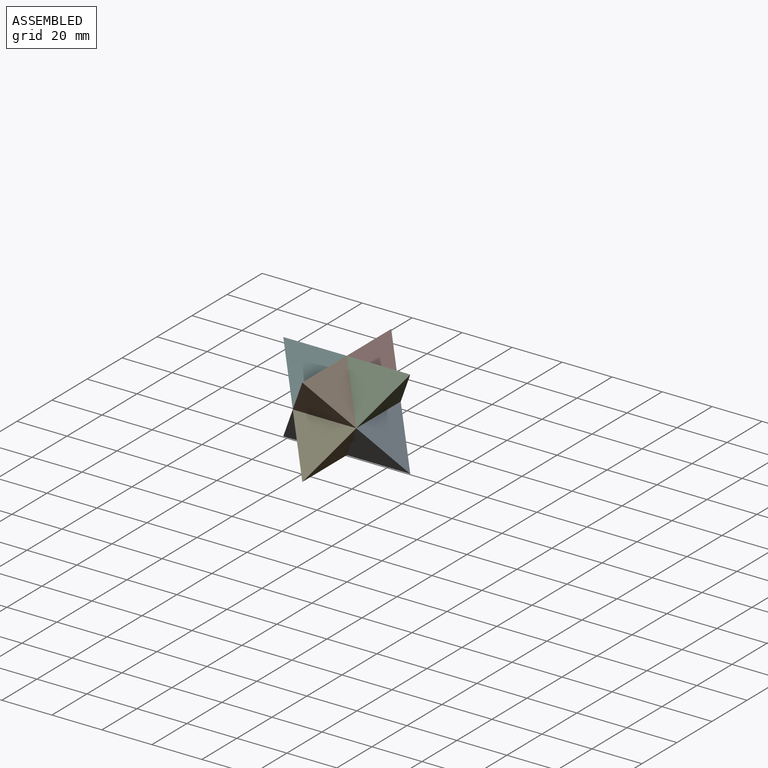
[diagram: assembled view]
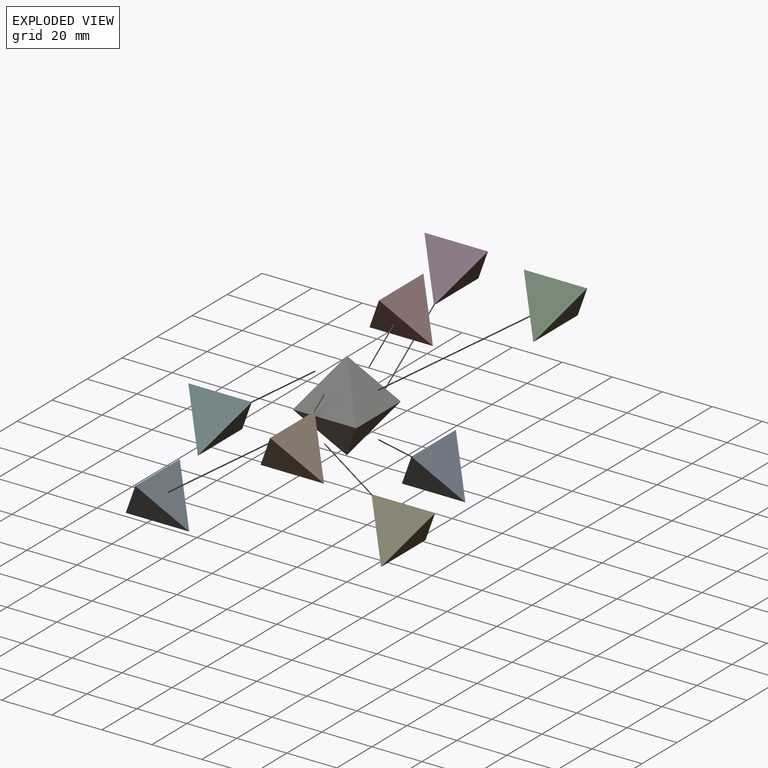
[diagram: exploded view]
GUIDED TOUR — MATED ASSEMBLY (Onshape document 3f85348f3bdfaddce01e71c8, AutoMate assembly 3f85348f3bdfaddce01e71c8_6da3c57e286938b58ab26346_006baec7a4cab7970eda06ca_default)

This assembly has 9 components, labeled P0..P8 below (a component is one placed occurrence of a part; the same part can appear more than once), held together by 24 mates. A mate is a constraint between two components; its type names the relative motion it leaves free:
  PLANAR — leaves sliding in the plane through the listed point (normal = the listed direction) and rotation about that normal free.
Axis/direction vectors are unit vectors and 'through' points are millimeter coordinates, both in the assembly's world frame.

MATES
  1. PLANAR "Planar 12": P4 <-> P6, direction (0.816, 0.000, -0.577) through (4.03, -12.51, -11.51) mm
  2. PLANAR "Planar 7": P2 <-> P6, direction (-0.816, 0.000, -0.577) through (8.27, 0.19, 6.45) mm
  3. PLANAR "Planar 17": P8 <-> P0, direction (0.000, -0.816, -0.577) through (12.50, -4.04, -11.51) mm
  4. PLANAR "Planar 10": P4 <-> P6, direction (0.000, 0.816, 0.577) through (-0.20, -8.27, -5.52) mm
  5. PLANAR "Planar 6": P1 <-> P6, direction (0.000, -0.816, -0.577) through (-0.20, -16.74, 6.45) mm
  6. PLANAR "Planar 13": P6 <-> P0, direction (-0.816, 0.000, -0.577) through (-8.67, 0.19, -5.52) mm
  7. PLANAR "Planar 8": P2 <-> P6, direction (0.816, 0.000, -0.577) through (16.73, 0.19, 6.45) mm
  8. PLANAR "Planar 14": P0 <-> P6, direction (0.000, 0.816, -0.577) through (-12.90, 4.43, -11.51) mm
  9. PLANAR "Planar 4": P1 <-> P6, direction (0.000, 0.816, -0.577) through (-0.20, -8.27, 6.45) mm
  10. PLANAR "Planar 24": P7 <-> P1, direction (0.816, 0.000, 0.577) through (4.03, 12.89, 12.44) mm
  11. PLANAR "Planar 23": P7 <-> P0, direction (0.000, 0.816, -0.577) through (-0.20, 17.13, 6.45) mm
  12. PLANAR "Planar 3": P5 <-> P6, direction (-0.816, 0.000, -0.577) through (-17.13, 0.19, 6.45) mm
  13. PLANAR "Planar 9": P2 <-> P6, direction (0.000, 0.816, 0.577) through (12.50, 4.43, 12.44) mm
  14. PLANAR "Planar 22": P7 <-> P6, direction (0.000, -0.816, -0.577) through (-0.20, 8.66, 6.45) mm
  15. PLANAR "Planar 15": P0 <-> P1, direction (0.000, -0.816, -0.577) through (-12.90, -4.04, -11.51) mm
  16. PLANAR "Planar 2": P5 <-> P6, direction (0.000, -0.816, 0.577) through (-12.90, -4.04, 12.44) mm
  17. PLANAR "Planar 21": P3 <-> P4, direction (0.816, 0.000, -0.577) through (4.03, 12.89, -11.51) mm
  18. PLANAR "Planar 20": P3 <-> P6, direction (0.000, 0.816, 0.577) through (-0.20, 17.13, -5.52) mm
  19. PLANAR "Planar 19": P6 <-> P3, direction (0.000, 0.816, -0.577) through (-0.20, 8.66, -5.52) mm
  20. PLANAR "Planar 18": P8 <-> P6, direction (0.000, 0.816, -0.577) through (12.50, 4.43, -11.51) mm
  21. PLANAR "Planar 5": P1 <-> P6, direction (0.816, 0.000, 0.577) through (4.03, -12.51, 12.44) mm
  22. PLANAR "Planar 16": P6 <-> P8, direction (0.816, 0.000, -0.577) through (8.27, 0.19, -5.52) mm
  23. PLANAR "Planar 1": P5 <-> P6, direction (0.816, 0.000, -0.577) through (-8.67, 0.19, 6.45) mm
  24. PLANAR "Planar 11": P4 <-> P2, direction (0.000, -0.816, 0.577) through (-0.20, -16.74, -5.52) mm

ASSEMBLY ORDER
  1. P6 — the base component [order verified]
  2. P5 [order verified]
  3. P7 [order verified]
  4. P8 [order verified]
  5. P1 [order verified]
  6. P0 [order verified]
  7. P4 [order verified]
  8. P2 [order verified]
  9. P3 [order verified]
Order-tag legend:
  [order verified] — this step's position reverses a verified removal order: the component was checked to insert without passing through the ones already placed.

Of the 9 components, 9 carry the full construction recipe — the FeatureScript program that regenerates the part's solid from scratch; the rest are supplied as boundary geometry only.
Each toured component is shown spotlighted twice — in the assembled view, then in the exploded view, where a leader line traces a displaced component back to its assembled socket (saturated green if recipe-attached, orange if geometry-only; every other component desaturated gray) — followed by its recipe or geometry summary and the mates that hold it.
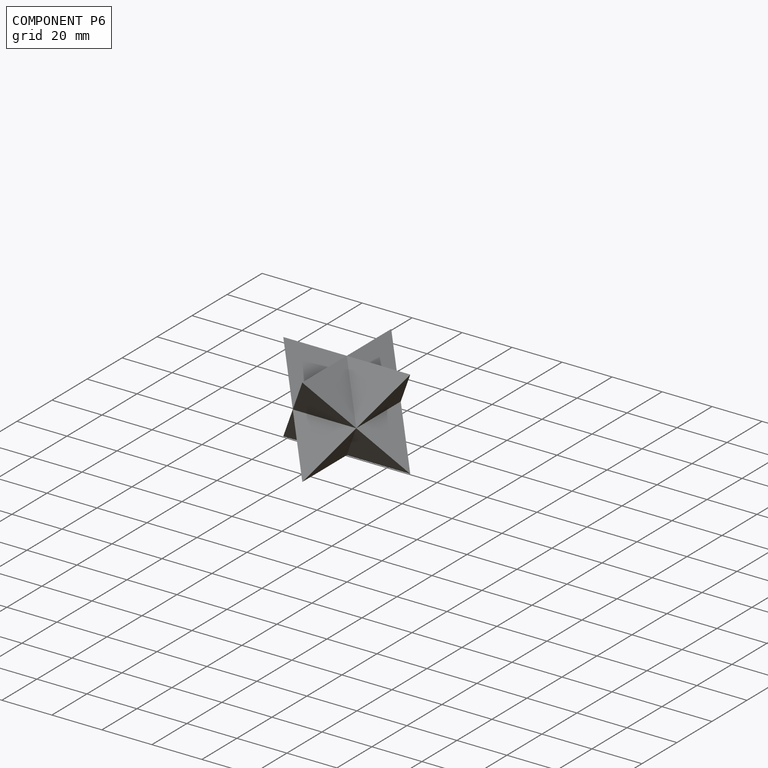
[diagram: component P6 — assembled]
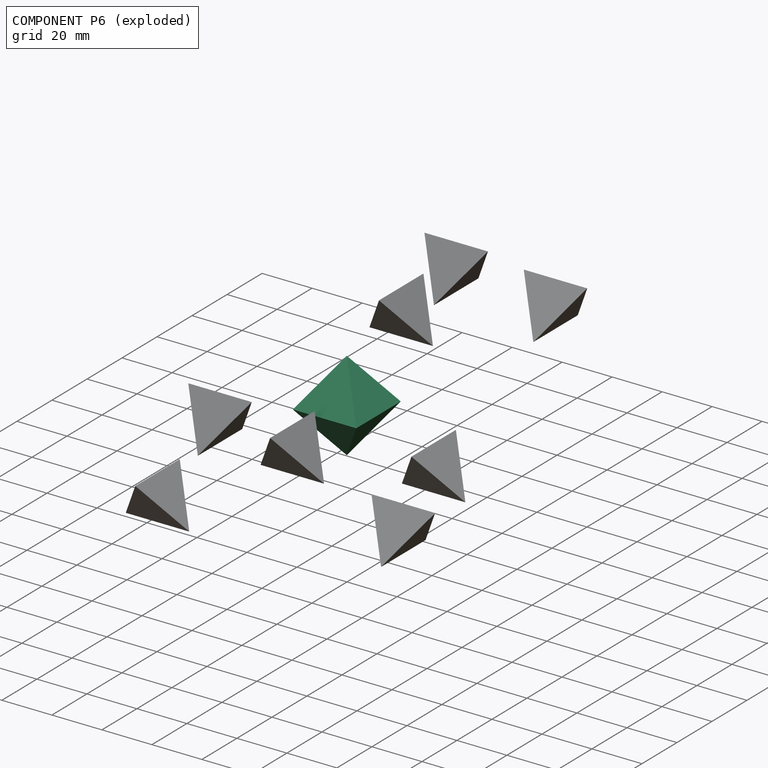
[diagram: component P6 — exploded]
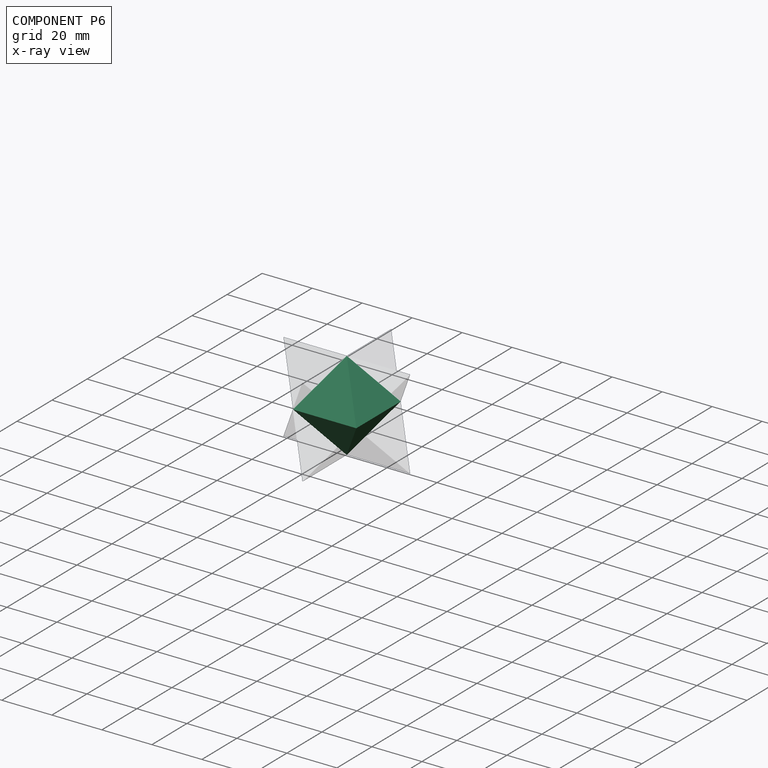
[diagram: component P6 — x-ray view]
COMPONENT P6 — recipe-attached (CADFS 00832785, mesh-verified: the recipe's output STEP matches this component's geometry to below the mesh-comparison resolution (tessellation chordal tolerance ~0.0762 mm)).
Held by: PLANAR mate "Planar 12" to P4; PLANAR mate "Planar 7" to P2; PLANAR mate "Planar 10" to P4; PLANAR mate "Planar 6" to P1; PLANAR mate "Planar 13" to P0; PLANAR mate "Planar 8" to P2; PLANAR mate "Planar 14" to P0; PLANAR mate "Planar 4" to P1; PLANAR mate "Planar 3" to P5; PLANAR mate "Planar 9" to P2; PLANAR mate "Planar 22" to P7; PLANAR mate "Planar 2" to P5; PLANAR mate "Planar 20" to P3; PLANAR mate "Planar 19" to P3; PLANAR mate "Planar 18" to P8; PLANAR mate "Planar 5" to P1; PLANAR mate "Planar 16" to P8; PLANAR mate "Planar 1" to P5.
Construction recipe (FeatureScript — the CAD program that rebuilds this solid; sketch coordinates are in the units given by the * unit suffixes, e.g. mm):

FeatureScript 1511;
import(path : "onshape/std/geometry.fs", version : "1511.0");
import(path : "onshape/std/common.fs", version : "1511.0");
const mm = millimeter;
const VERTEX = EntityType.VERTEX;
const EDGE = EntityType.EDGE;
const FACE = EntityType.FACE;
const BODY = EntityType.BODY;
function v(x, y){return vector(x, y);}
function OD(order){return orderDisambiguation(order);}
function OSD(set){return originalSetDisambiguation(set);}
function TD(topology){return topologyDisambiguation(topology);}
function TDD(query){return trueDependencyDisambiguation(query);}
function sQuery(a, b, c) {return sketchEntityQuery(a, b, c);}

annotation { "Feature Type Name" : "Feature", "Feature Type Description" : "" }
export const myFeature = defineFeature(function(context is Context, id is Id, definition is map)
    precondition{}
    {
        {
            var Q0;
            Q0=qCreatedBy(makeId("Top.planeOp"),FACE);
            var sketch = newSketch(context, id + "F0", { "sketchPlane" : qUnion([Q0])});
            skLineSegment(sketch, "E0.bottom", {"start": v(12.7, -12.7) * mm, "end": v(-12.7, -12.7) * mm, "construction": true});
            skLineSegment(sketch, "E0.top", {"start": v(12.7, 12.7) * mm, "end": v(-12.7, 12.7) * mm});
            skLineSegment(sketch, "E0.left", {"start": v(12.7, -12.7) * mm, "end": v(12.7, 12.7) * mm, "construction": true});
            skLineSegment(sketch, "E0.right", {"start": v(-12.7, -12.7) * mm, "end": v(-12.7, 12.7) * mm});
            skPoint(sketch, "E0.middle", {"position": v(0, 0) * mm});
            skLineSegment(sketch, "E1", {"start": v(12.7, 12.7) * mm, "end": v(-12.7, -12.7) * mm});
            skSolve(sketch);
        }
        {
            var Q0;
            Q0=qCreatedBy(makeId("Front.planeOp"),FACE);
            var sketch = newSketch(context, id + "F1", { "sketchPlane" : qUnion([Q0])});
            skLineSegment(sketch, "E2", {"start": v(0, 0) * mm, "end": v(-12.7, 0) * mm});
            skLineSegment(sketch, "E3", {"start": v(12.7, 0) * mm, "end": v(0, 0) * mm});
            skLineSegment(sketch, "E4", {"start": v(0, 0) * mm, "end": v(0, 17.96) * mm});
            skSolve(sketch);
        }
        {
            var Q0;
            Q0=sQuery(id+"F0.wireOp",VERTEX,"E0.top.end");
            var Q1;
            Q1=sQuery(id+"F1.wireOp",VERTEX,"E4.end");
            var Q2;
            Q2=sQuery(id+"F0.wireOp",VERTEX,"E0.bottom.end");
            cPlane(context, id + "F2", {"entities" : qUnion([Q0, Q1, Q2]), "cplaneType" : CPlaneType.THREE_POINT, "offset" : 25.4 * mm, "width" : 152.4 * mm, "height" : 152.4 * mm});
        }
        {
            var Q0;
            Q0=sQuery(id+"F0.wireOp",VERTEX,"E0.top.start");
            var Q1;
            Q1=sQuery(id+"F0.wireOp",VERTEX,"E0.top.end");
            var Q2;
            Q2=sQuery(id+"F1.wireOp",VERTEX,"E4.end");
            cPlane(context, id + "F3", {"entities" : qUnion([Q0, Q1, Q2]), "cplaneType" : CPlaneType.THREE_POINT, "offset" : 25.4 * mm, "width" : 152.4 * mm, "height" : 152.4 * mm});
        }
        {
            var Q0;
            Q0 = qSketchRegion(id + "F0", true);
            extrude(context, id + "F4", {"entities" : qUnion([Q0]), "depth" : 25.4 * mm, "offsetDistance" : 25.4 * mm});
        }
        {
            var Q0;
            Q0=qCreatedBy(id+"F2.planeOp",FACE);
            var sketch = newSketch(context, id + "F5", { "sketchPlane" : qUnion([Q0])});
            skLineSegment(sketch, "E5.bottom", {"start": v(-30.26, -23.12) * mm, "end": v(37.63, -23.12) * mm});
            skLineSegment(sketch, "E5.top", {"start": v(-30.26, 39.54) * mm, "end": v(37.63, 39.54) * mm});
            skLineSegment(sketch, "E5.left", {"start": v(-30.26, -23.12) * mm, "end": v(-30.26, 39.54) * mm});
            skLineSegment(sketch, "E5.right", {"start": v(37.63, -23.12) * mm, "end": v(37.63, 39.54) * mm});
            skSolve(sketch);
        }
        {
            var Q0;
            Q0 = qSketchRegion(id + "F5", true);
            extrude(context, id + "F6", {"entities" : qUnion([Q0]), "operationType" : NewBodyOperationType.REMOVE, "depth" : 25.4 * mm, "offsetDistance" : 25.4 * mm});
        }
        {
            var Q0;
            Q0=qCreatedBy(id+"F3.planeOp",FACE);
            var sketch = newSketch(context, id + "F7", { "sketchPlane" : qUnion([Q0])});
            skLineSegment(sketch, "E6.bottom", {"start": v(26.4, -15.73) * mm, "end": v(-36.96, -15.73) * mm});
            skLineSegment(sketch, "E6.top", {"start": v(26.4, 32.46) * mm, "end": v(-36.96, 32.46) * mm});
            skLineSegment(sketch, "E6.left", {"start": v(26.4, -15.73) * mm, "end": v(26.4, 32.46) * mm});
            skLineSegment(sketch, "E6.right", {"start": v(-36.96, -15.73) * mm, "end": v(-36.96, 32.46) * mm});
            skSolve(sketch);
        }
        {
            var Q0;
            Q0 = qSketchRegion(id + "F7", true);
            extrude(context, id + "F8", {"entities" : qUnion([Q0]), "operationType" : NewBodyOperationType.REMOVE, "oppositeDirection" : true, "depth" : 25.4 * mm, "offsetDistance" : 25.4 * mm});
        }
        {
            var Q0;
            Q0=makeQuery(id+"F4.opExtrude","SWEPT_BODY",BODY,{"disambiguationData":[OSD([sQuery(id+"F0.wireOp",EDGE,"E0.top"),sQuery(id+"F0.wireOp",EDGE,"E0.right"),sQuery(id+"F0.wireOp",EDGE,"E1")])]});
            var Q1;
            Q1=makeQuery(id+"F4.opExtrude","SWEPT_FACE",FACE,{"disambiguationData":[OSD([sQuery(id+"F0.wireOp",EDGE,"E1")])]});
            mirror(context, id + "F9", {"operationType" : NewBodyOperationType.ADD, "entities" : qUnion([Q0]), "mirrorPlane" : qUnion([Q1])});
        }
        {
            var Q0;
            Q0=makeQuery(id+"F4.opExtrude","SWEPT_BODY",BODY,{"disambiguationData":[OSD([sQuery(id+"F0.wireOp",EDGE,"E0.top"),sQuery(id+"F0.wireOp",EDGE,"E0.right"),sQuery(id+"F0.wireOp",EDGE,"E1")])]});
            var Q1;
            {var subQ0=makeQuery(id+"F4.opExtrude","CAP_FACE",FACE,{"disambiguationData":[OSD([sQuery(id+"F0.wireOp",EDGE,"E0.top"),sQuery(id+"F0.wireOp",EDGE,"E0.right"),sQuery(id+"F0.wireOp",EDGE,"E1")])],"isStart":true});Q1=makeQuery(id+"F9.boolean.opBoolean","MERGE",FACE,{"derivedFrom":[subQ0,makeQuery(id+"F9.opPattern","COPY",FACE,{"derivedFrom":subQ0,"instanceName":"1"})]});}
            mirror(context, id + "F10", {"operationType" : NewBodyOperationType.ADD, "entities" : qUnion([Q0]), "mirrorPlane" : qUnion([Q1])});
        }
    });
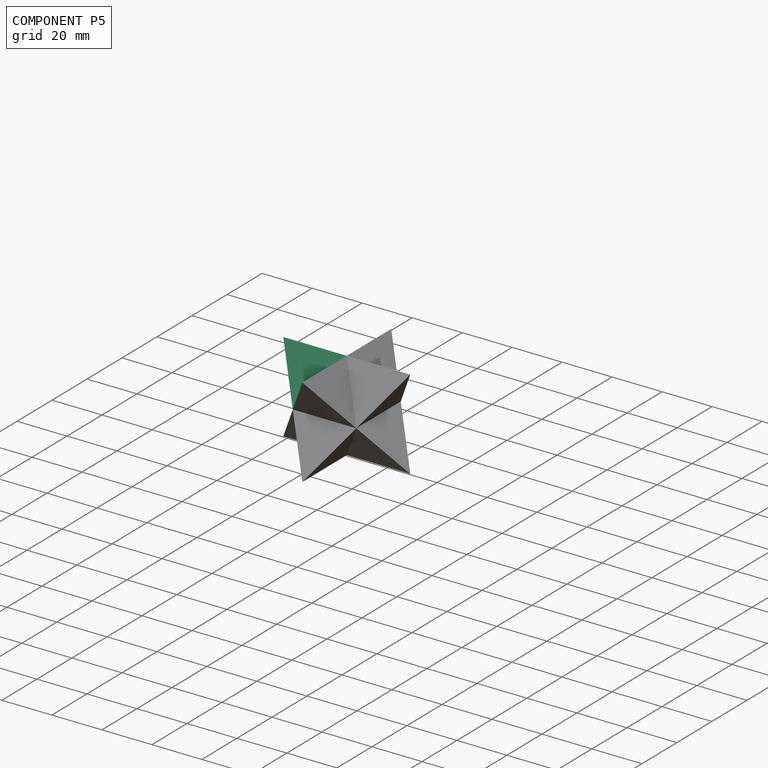
[diagram: component P5 — assembled]
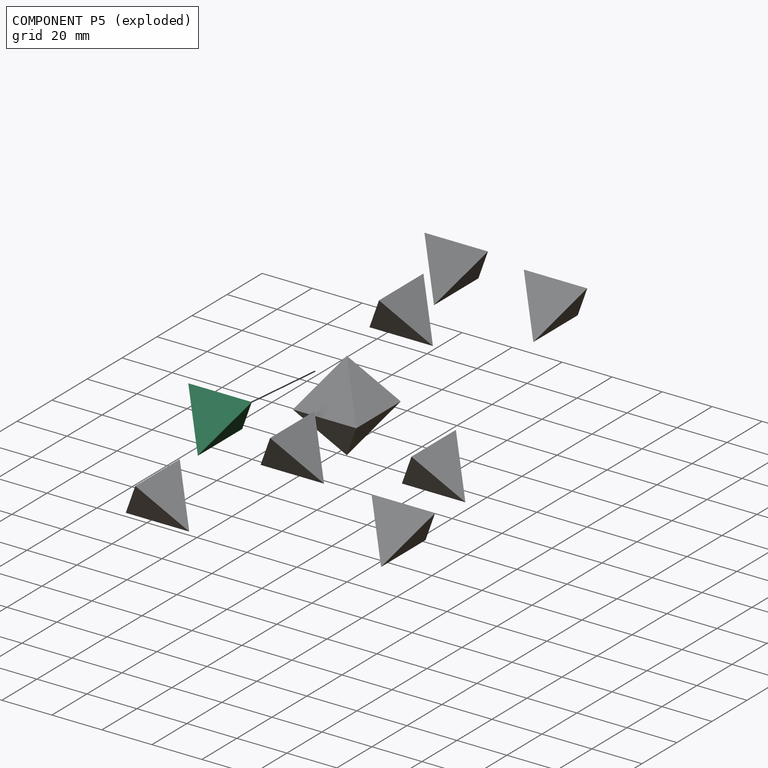
[diagram: component P5 — exploded]
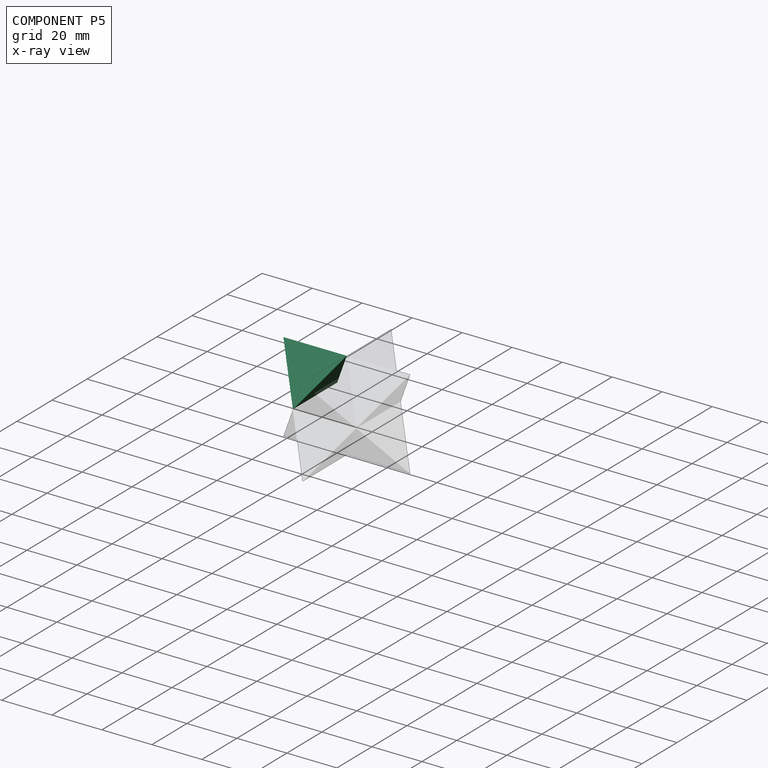
[diagram: component P5 — x-ray view]
COMPONENT P5 — same part as P0 (CADFS 00832784); its construction recipe is shown at P0.
Held by: PLANAR mate "Planar 3" to P6; PLANAR mate "Planar 2" to P6; PLANAR mate "Planar 1" to P6.
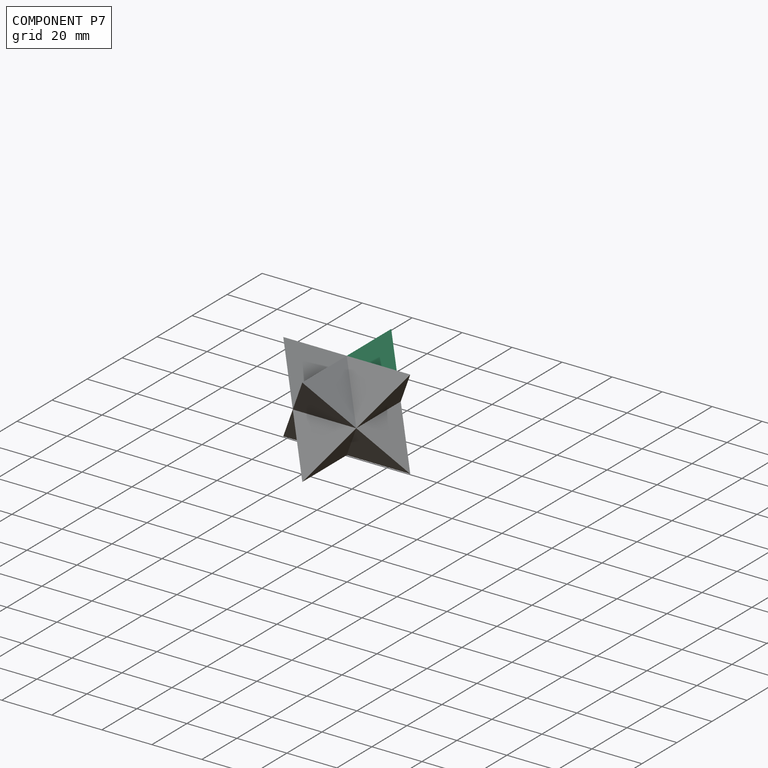
[diagram: component P7 — assembled]
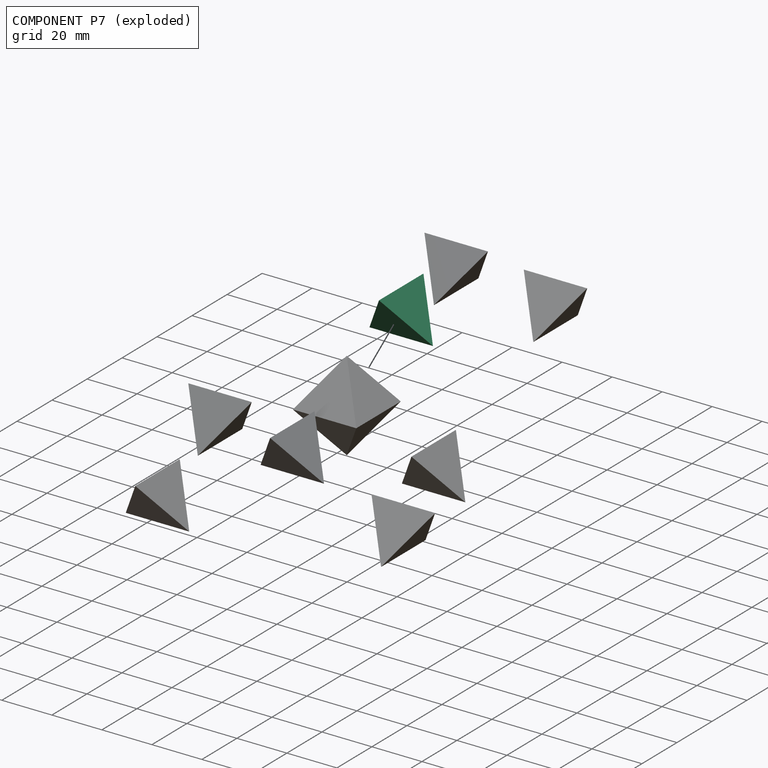
[diagram: component P7 — exploded]
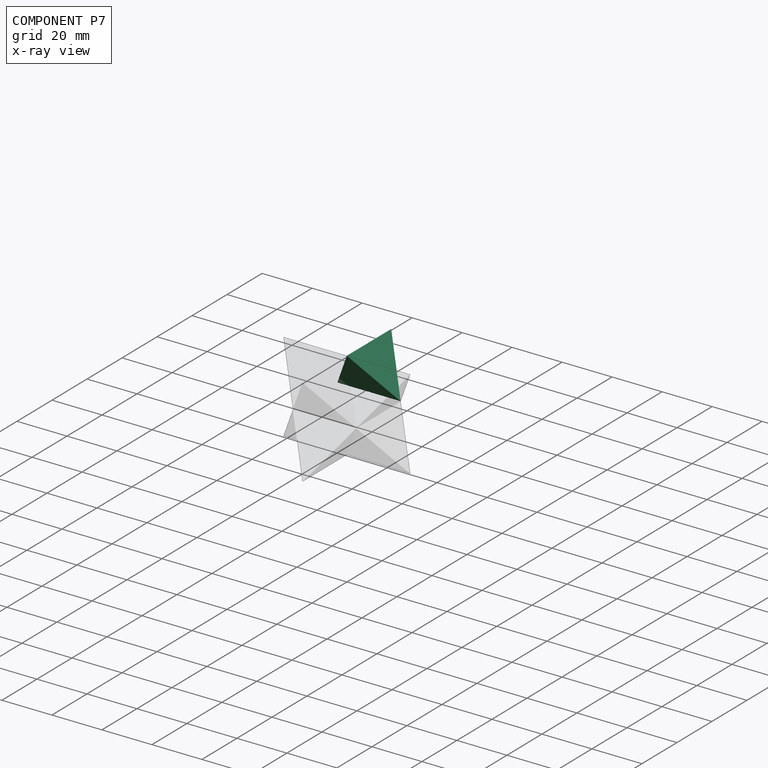
[diagram: component P7 — x-ray view]
COMPONENT P7 — same part as P0 (CADFS 00832784); its construction recipe is shown at P0.
Held by: PLANAR mate "Planar 24" to P1; PLANAR mate "Planar 23" to P0; PLANAR mate "Planar 22" to P6.
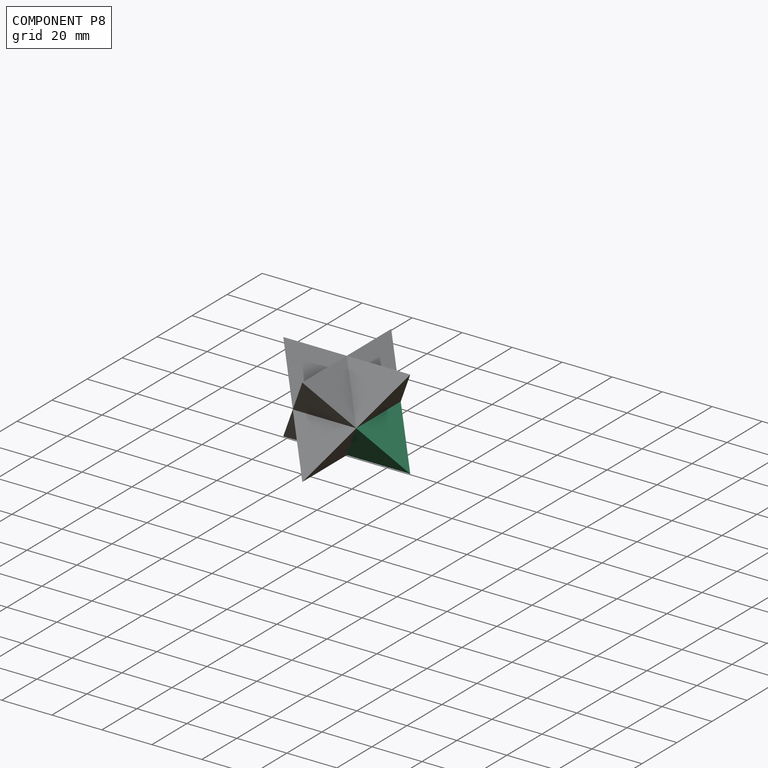
[diagram: component P8 — assembled]
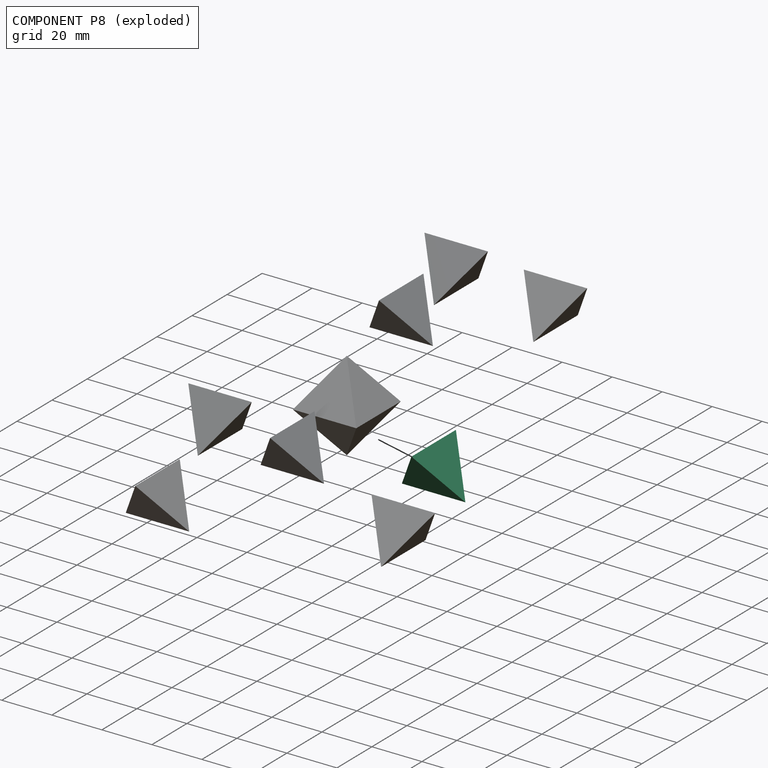
[diagram: component P8 — exploded]
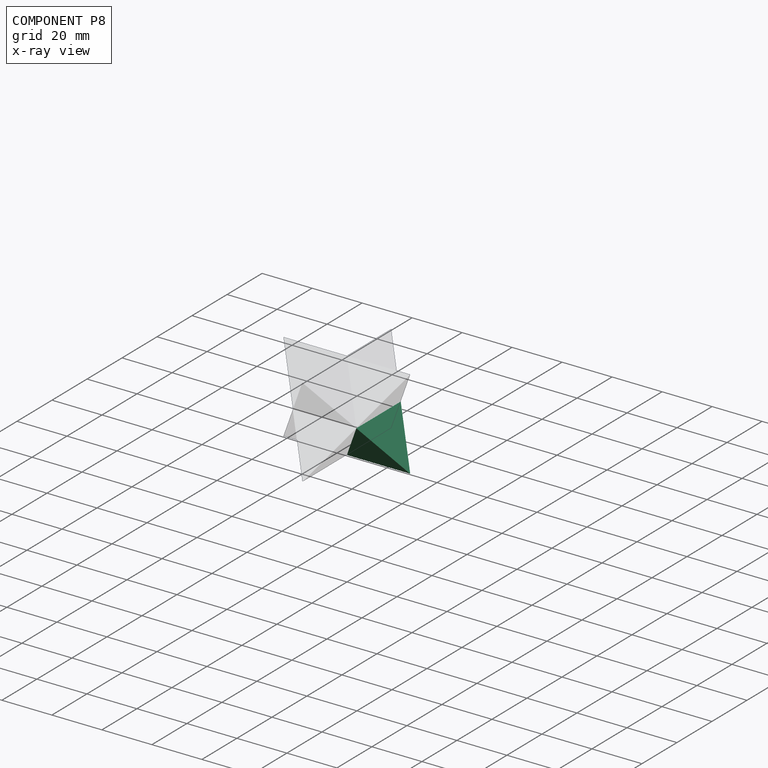
[diagram: component P8 — x-ray view]
COMPONENT P8 — same part as P0 (CADFS 00832784); its construction recipe is shown at P0.
Held by: PLANAR mate "Planar 17" to P0; PLANAR mate "Planar 18" to P6; PLANAR mate "Planar 16" to P6.
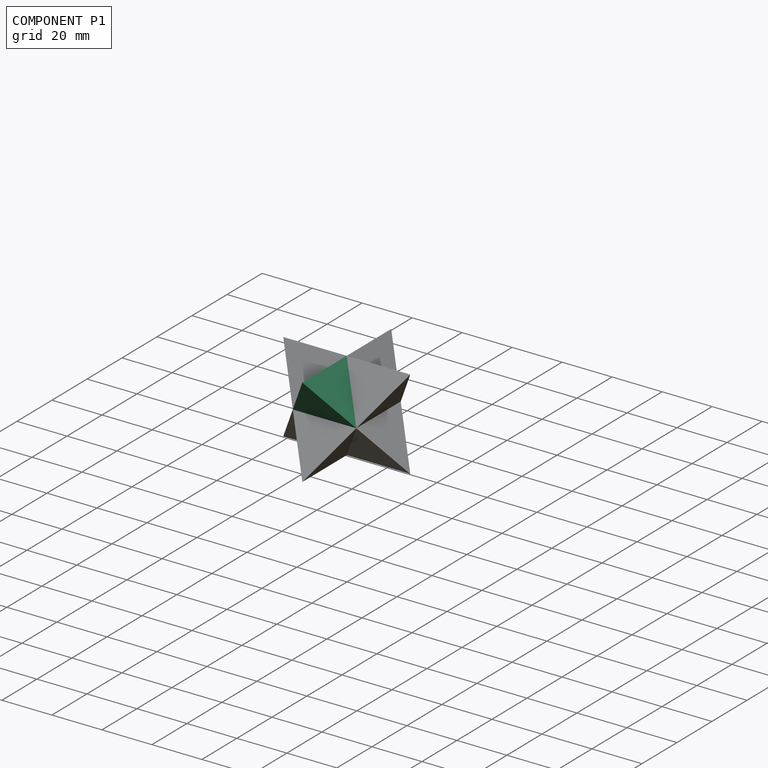
[diagram: component P1 — assembled]
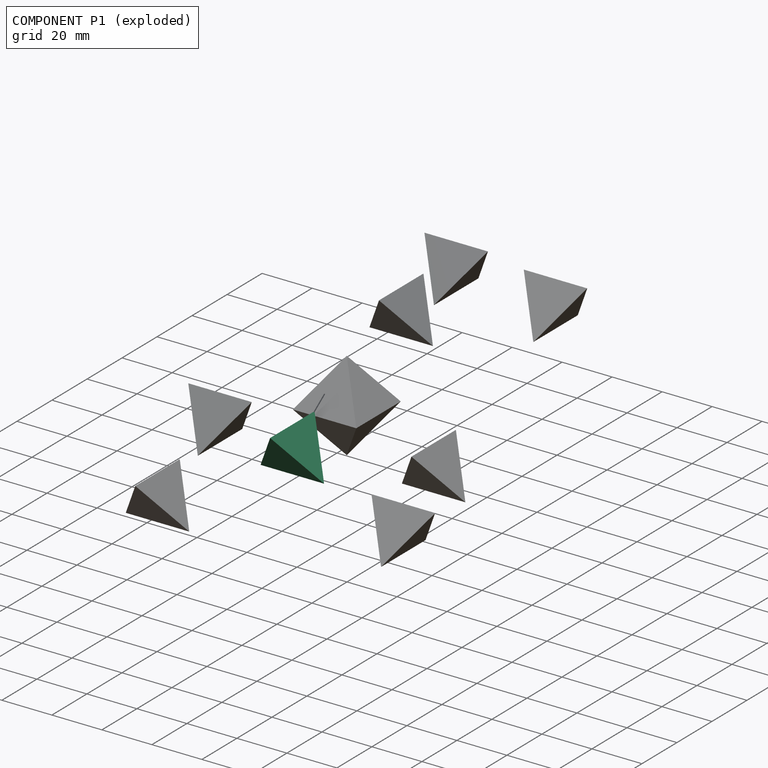
[diagram: component P1 — exploded]
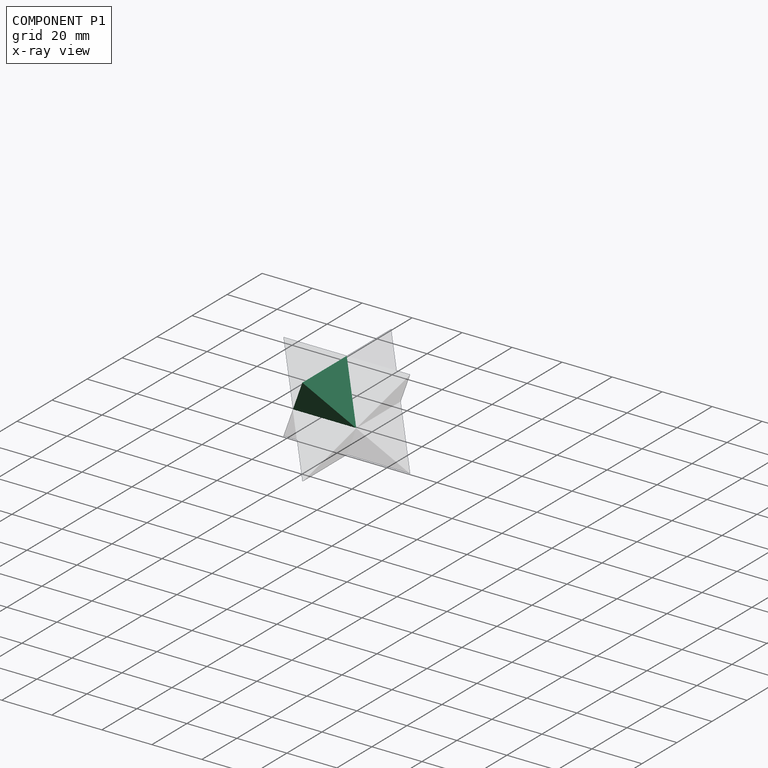
[diagram: component P1 — x-ray view]
COMPONENT P1 — same part as P0 (CADFS 00832784); its construction recipe is shown at P0.
Held by: PLANAR mate "Planar 6" to P6; PLANAR mate "Planar 4" to P6; PLANAR mate "Planar 24" to P7; PLANAR mate "Planar 15" to P0; PLANAR mate "Planar 5" to P6.
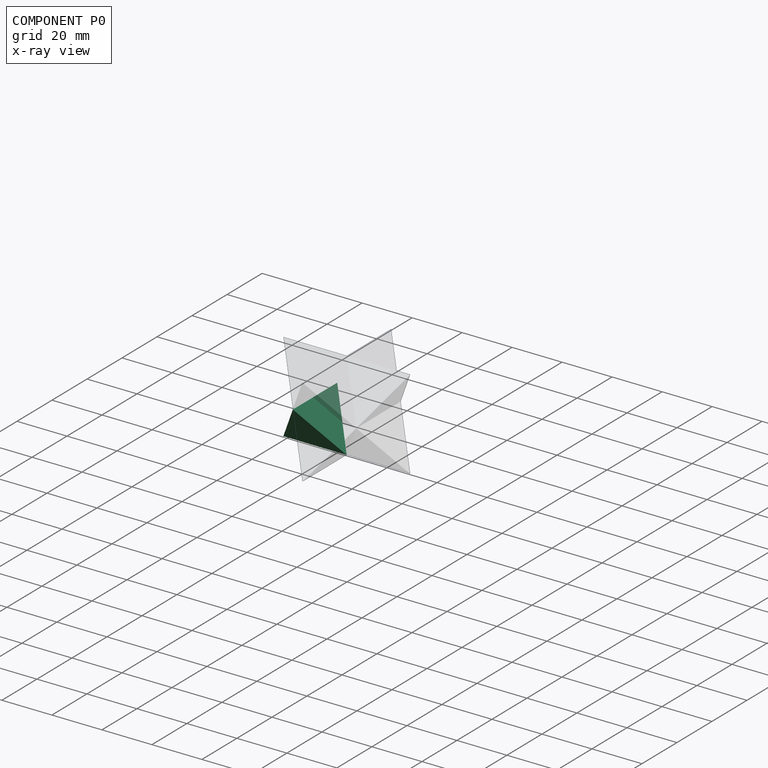
[diagram: component P0 — x-ray view]
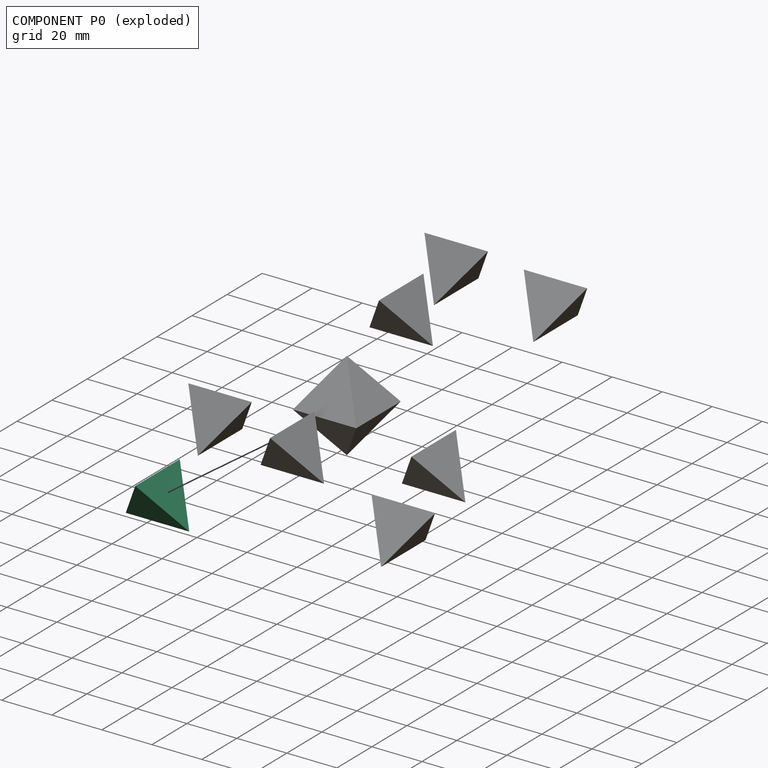
[diagram: component P0 — exploded]
COMPONENT P0 — recipe-attached (CADFS 00832784, mesh-verified: the recipe's output STEP matches this component's geometry to below the mesh-comparison resolution (tessellation chordal tolerance ~0.0592 mm)).
Held by: PLANAR mate "Planar 17" to P8; PLANAR mate "Planar 13" to P6; PLANAR mate "Planar 14" to P6; PLANAR mate "Planar 23" to P7; PLANAR mate "Planar 15" to P1.
Construction recipe (FeatureScript — the CAD program that rebuilds this solid; sketch coordinates are in the units given by the * unit suffixes, e.g. mm):

FeatureScript 1511;
import(path : "onshape/std/geometry.fs", version : "1511.0");
import(path : "onshape/std/common.fs", version : "1511.0");
const mm = millimeter;
const VERTEX = EntityType.VERTEX;
const EDGE = EntityType.EDGE;
const FACE = EntityType.FACE;
const BODY = EntityType.BODY;
function v(x, y){return vector(x, y);}
function OD(order){return orderDisambiguation(order);}
function OSD(set){return originalSetDisambiguation(set);}
function TD(topology){return topologyDisambiguation(topology);}
function TDD(query){return trueDependencyDisambiguation(query);}
function sQuery(a, b, c) {return sketchEntityQuery(a, b, c);}

annotation { "Feature Type Name" : "Feature", "Feature Type Description" : "" }
export const myFeature = defineFeature(function(context is Context, id is Id, definition is map)
    precondition{}
    {
        {
            var Q0;
            Q0=qCreatedBy(makeId("Top.planeOp"),FACE);
            var sketch = newSketch(context, id + "F0", { "sketchPlane" : qUnion([Q0])});
            skLineSegment(sketch, "E0", {"start": v(0, 0) * mm, "end": v(0, -12.7) * mm});
            skLineSegment(sketch, "E1", {"start": v(0, -12.7) * mm, "end": v(-22, 0) * mm});
            skLineSegment(sketch, "E2", {"start": v(-22, 0) * mm, "end": v(0, 0) * mm});
            skPoint(sketch, "E3", {"position": v(-22, 0) * mm});
            skLineSegment(sketch, "E4", {"start": v(-22, 0) * mm, "end": v(0, 12.7) * mm});
            skLineSegment(sketch, "E5", {"start": v(0, 12.7) * mm, "end": v(0, 0) * mm});
            skLineSegment(sketch, "E6", {"start": v(0, -12.7) * mm, "end": v(-11, 6.35) * mm});
            skPoint(sketch, "E7", {"position": v(-7.33, 0) * mm});
            skSolve(sketch);
        }
        {
            var Q0;
            Q0=qCreatedBy(makeId("Front.planeOp"),FACE);
            var sketch = newSketch(context, id + "F1", { "sketchPlane" : qUnion([Q0])});
            skLineSegment(sketch, "E8", {"start": v(0, 0) * mm, "end": v(-22, 0) * mm});
            skLineSegment(sketch, "E9", {"start": v(-22, 0) * mm, "end": v(-7.33, 20.74) * mm});
            skLineSegment(sketch, "E10", {"start": v(-7.33, 0) * mm, "end": v(-7.33, 20.74) * mm});
            skLineSegment(sketch, "E11", {"start": v(-7.33, 20.74) * mm, "end": v(0, 0) * mm});
            skSolve(sketch);
        }
        {
            var Q0;
            Q0=sQuery(id+"F1.wireOp",VERTEX,"E9.end");
            var Q1;
            Q1=sQuery(id+"F0.wireOp",VERTEX,"E0.end");
            var Q2;
            Q2=sQuery(id+"F0.wireOp",VERTEX,"E0.start");
            cPlane(context, id + "F2", {"entities" : qUnion([Q0, Q1, Q2]), "cplaneType" : CPlaneType.THREE_POINT, "offset" : 25.4 * mm, "width" : 152.4 * mm, "height" : 152.4 * mm});
        }
        {
            var Q0;
            Q0=qCreatedBy(id+"F2.planeOp",FACE);
            var sketch = newSketch(context, id + "F3", { "sketchPlane" : qUnion([Q0])});
            skLineSegment(sketch, "E12", {"start": v(0, 0) * mm, "end": v(0, 22) * mm});
            skLineSegment(sketch, "E13", {"start": v(0, 22) * mm, "end": v(12.7, 0) * mm});
            skLineSegment(sketch, "E14", {"start": v(12.7, 0) * mm, "end": v(0, 0) * mm});
            skLineSegment(sketch, "E15", {"start": v(0, 22) * mm, "end": v(-12.7, 0) * mm});
            skLineSegment(sketch, "E16", {"start": v(-12.7, 0) * mm, "end": v(0, 0) * mm});
            skPoint(sketch, "E17", {"position": v(0, 22) * mm});
            skSolve(sketch);
        }
        {
            var Q0;
            Q0 = qSketchRegion(id + "F0", true);
            extrude(context, id + "F4", {"entities" : qUnion([Q0]), "depth" : 25.4 * mm, "offsetDistance" : 25.4 * mm});
        }
        {
            var Q0;
            Q0=qCreatedBy(id+"F2.planeOp",FACE);
            var sketch = newSketch(context, id + "F5", { "sketchPlane" : qUnion([Q0])});
            skLineSegment(sketch, "E18.bottom", {"start": v(19.29, -4.86) * mm, "end": v(-27.31, -4.86) * mm});
            skLineSegment(sketch, "E18.top", {"start": v(19.29, 34.9) * mm, "end": v(-27.31, 34.9) * mm});
            skLineSegment(sketch, "E18.left", {"start": v(19.29, -4.86) * mm, "end": v(19.29, 34.9) * mm});
            skLineSegment(sketch, "E18.right", {"start": v(-27.31, -4.86) * mm, "end": v(-27.31, 34.9) * mm});
            skSolve(sketch);
        }
        {
            var Q0;
            Q0 = qSketchRegion(id + "F5", true);
            extrude(context, id + "F6", {"entities" : qUnion([Q0]), "operationType" : NewBodyOperationType.REMOVE, "oppositeDirection" : true, "depth" : 25.4 * mm, "offsetDistance" : 25.4 * mm});
        }
        {
            var Q0;
            Q0=sQuery(id+"F1.wireOp",VERTEX,"E9.end");
            var Q1;
            Q1=sQuery(id+"F3.wireOp",VERTEX,"E13.end");
            var Q2;
            Q2=sQuery(id+"F1.wireOp",VERTEX,"E8.end");
            cPlane(context, id + "F7", {"entities" : qUnion([Q0, Q1, Q2]), "cplaneType" : CPlaneType.THREE_POINT, "offset" : 25.4 * mm, "width" : 152.4 * mm, "height" : 152.4 * mm});
        }
        {
            var Q0;
            Q0=qCreatedBy(id+"F7.planeOp",FACE);
            var sketch = newSketch(context, id + "F8", { "sketchPlane" : qUnion([Q0])});
            skLineSegment(sketch, "E19.bottom", {"start": v(-33.53, -9.72) * mm, "end": v(34.55, -9.72) * mm});
            skLineSegment(sketch, "E19.top", {"start": v(-33.53, 41.05) * mm, "end": v(34.55, 41.05) * mm});
            skLineSegment(sketch, "E19.left", {"start": v(-33.53, -9.72) * mm, "end": v(-33.53, 41.05) * mm});
            skLineSegment(sketch, "E19.right", {"start": v(34.55, -9.72) * mm, "end": v(34.55, 41.05) * mm});
            skSolve(sketch);
        }
        {
            var Q0;
            Q0 = qSketchRegion(id + "F8", true);
            extrude(context, id + "F9", {"entities" : qUnion([Q0]), "operationType" : NewBodyOperationType.REMOVE, "depth" : 25.4 * mm, "offsetDistance" : 25.4 * mm});
        }
        {
            var Q0;
            Q0=sQuery(id+"F3.wireOp",VERTEX,"E17");
            var Q1;
            Q1=sQuery(id+"F1.wireOp",VERTEX,"E8.end");
            var Q2;
            Q2=sQuery(id+"F3.wireOp",VERTEX,"E15.end");
            cPlane(context, id + "F10", {"entities" : qUnion([Q0, Q1, Q2]), "cplaneType" : CPlaneType.THREE_POINT, "offset" : 25.4 * mm, "width" : 152.4 * mm, "height" : 152.4 * mm});
        }
        {
            var Q0;
            Q0=qCreatedBy(id+"F10.planeOp",FACE);
            var sketch = newSketch(context, id + "F11", { "sketchPlane" : qUnion([Q0])});
            skLineSegment(sketch, "E20.bottom", {"start": v(-11.77, -12.45) * mm, "end": v(33.85, -12.45) * mm});
            skLineSegment(sketch, "E20.top", {"start": v(-11.77, 45.72) * mm, "end": v(33.85, 45.72) * mm});
            skLineSegment(sketch, "E20.left", {"start": v(-11.77, -12.45) * mm, "end": v(-11.77, 45.72) * mm});
            skLineSegment(sketch, "E20.right", {"start": v(33.85, -12.45) * mm, "end": v(33.85, 45.72) * mm});
            skSolve(sketch);
        }
        {
            var Q0;
            Q0 = qSketchRegion(id + "F11", true);
            extrude(context, id + "F12", {"entities" : qUnion([Q0]), "operationType" : NewBodyOperationType.REMOVE, "depth" : 25.4 * mm, "offsetDistance" : 25.4 * mm});
        }
    });
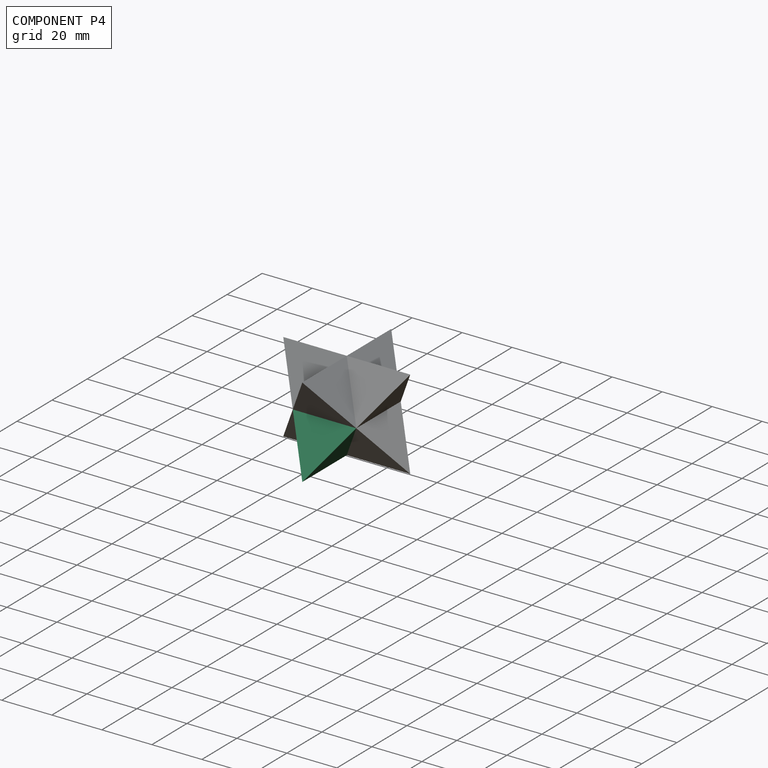
[diagram: component P4 — assembled]
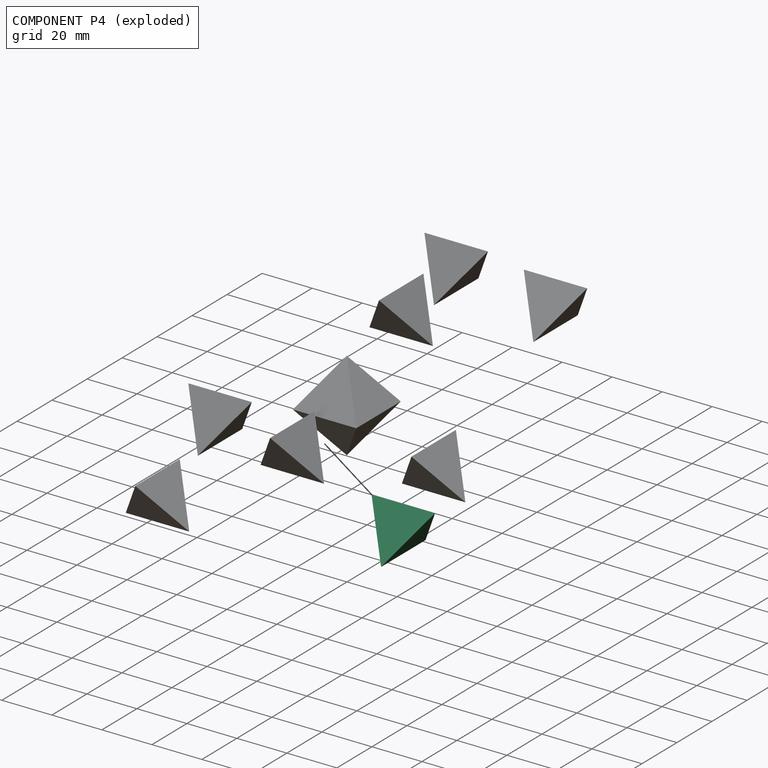
[diagram: component P4 — exploded]
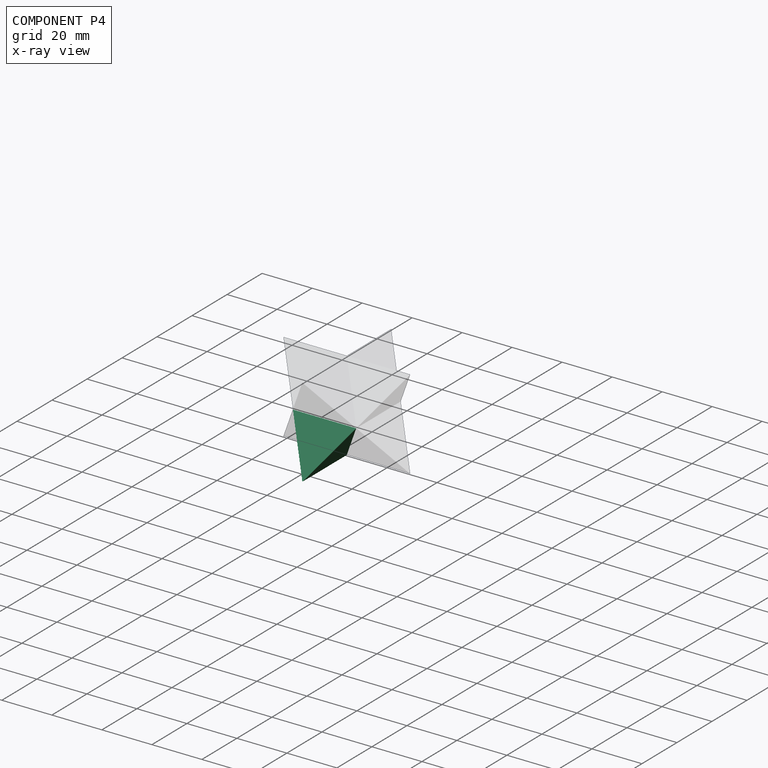
[diagram: component P4 — x-ray view]
COMPONENT P4 — same part as P0 (CADFS 00832784); its construction recipe is shown at P0.
Held by: PLANAR mate "Planar 12" to P6; PLANAR mate "Planar 10" to P6; PLANAR mate "Planar 21" to P3; PLANAR mate "Planar 11" to P2.
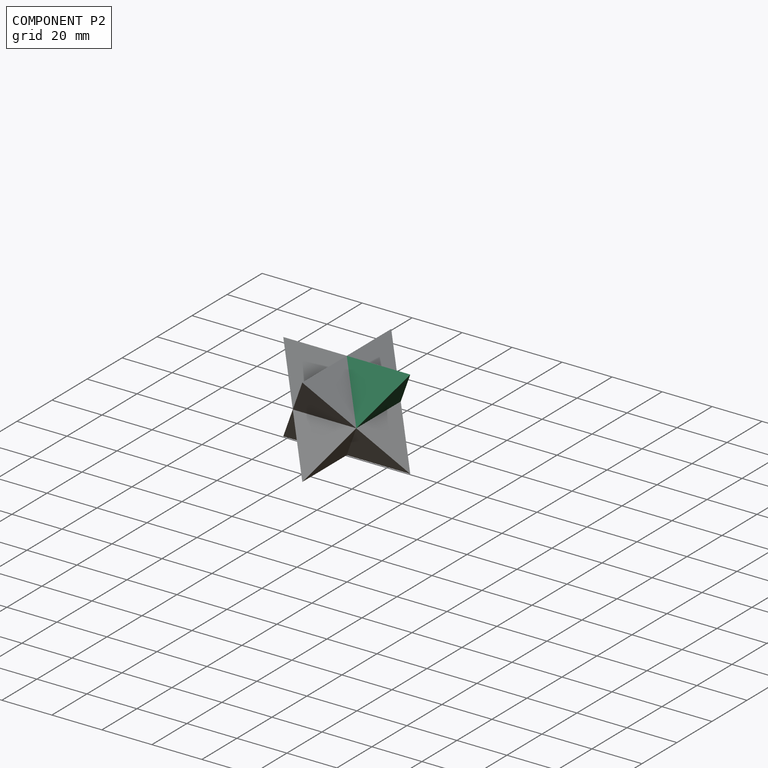
[diagram: component P2 — assembled]
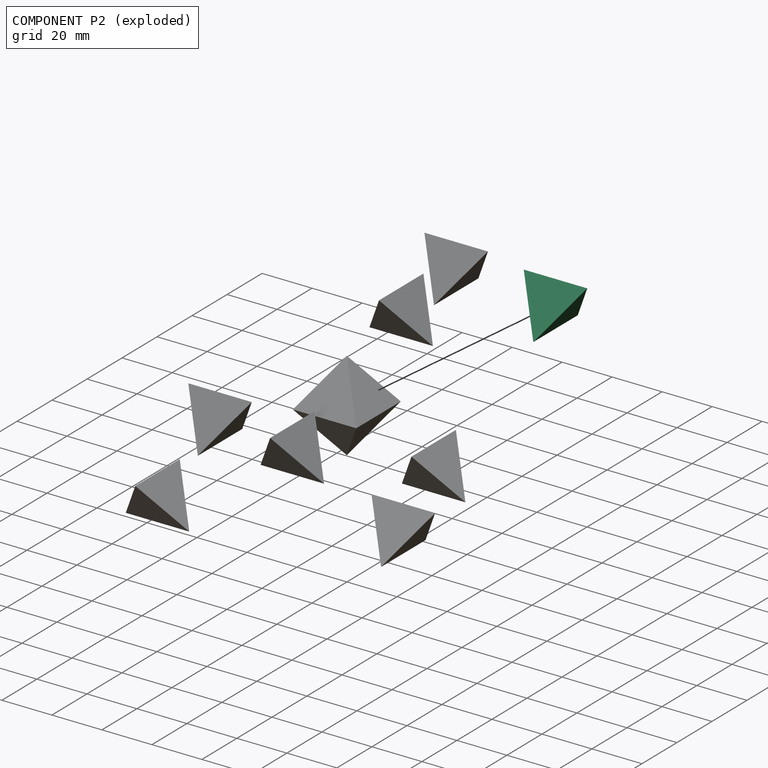
[diagram: component P2 — exploded]
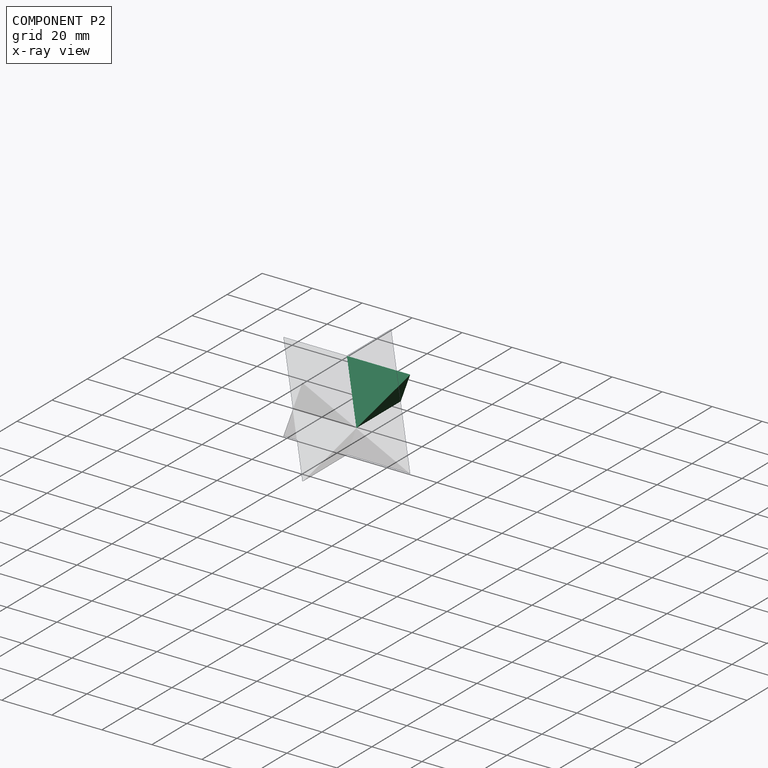
[diagram: component P2 — x-ray view]
COMPONENT P2 — same part as P0 (CADFS 00832784); its construction recipe is shown at P0.
Held by: PLANAR mate "Planar 7" to P6; PLANAR mate "Planar 8" to P6; PLANAR mate "Planar 9" to P6; PLANAR mate "Planar 11" to P4.
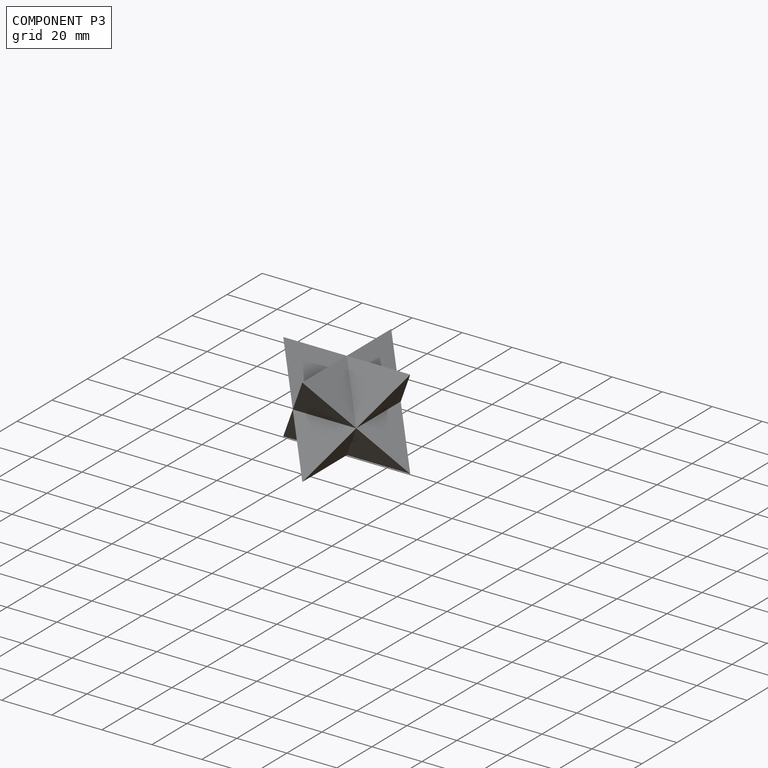
[diagram: component P3 — assembled]
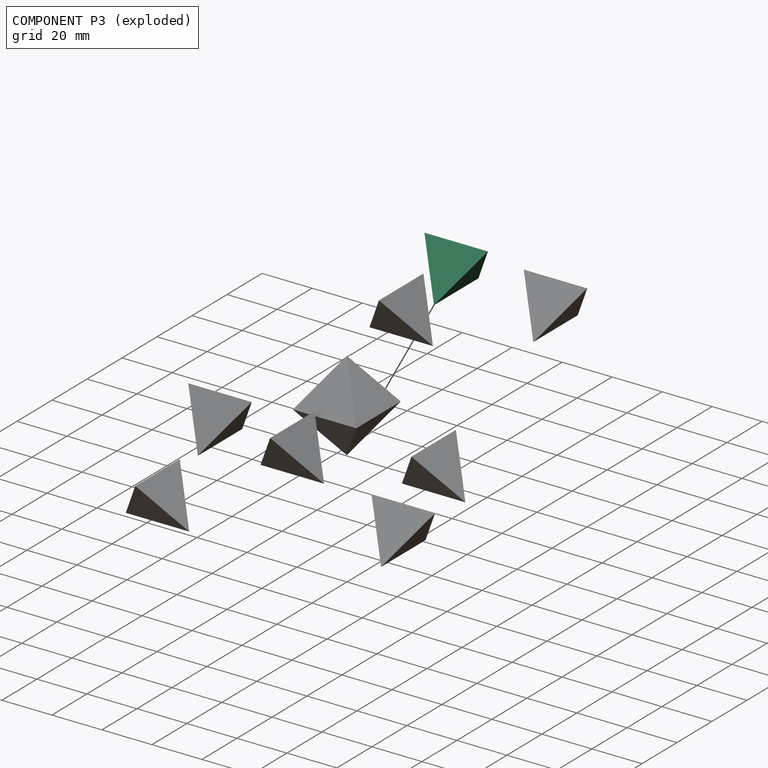
[diagram: component P3 — exploded]
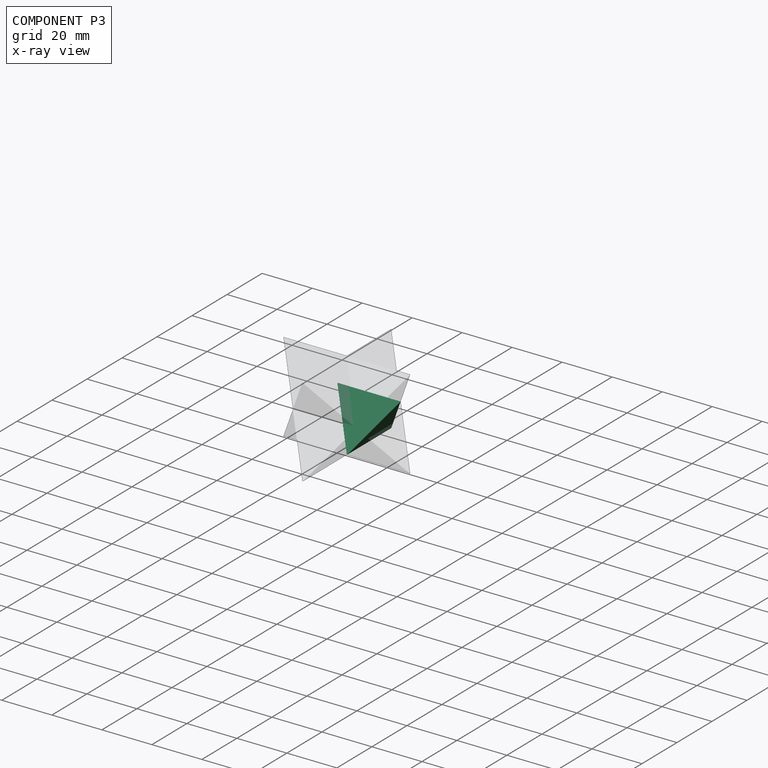
[diagram: component P3 — x-ray view]
COMPONENT P3 — same part as P0 (CADFS 00832784); its construction recipe is shown at P0.
Held by: PLANAR mate "Planar 21" to P4; PLANAR mate "Planar 20" to P6; PLANAR mate "Planar 19" to P6.
PROVENANCE & LICENSES
Assembly (occurrences, transforms, mates, per-part STEP geometry): AutoMate dataset, Zenodo record 7776208, CC0.
Construction recipes: CADFS (HuggingFace VladPyatov/CADFS, CC-BY-4.0, layered over the ABC dataset), FeatureScript reconstruction programs keyed by ABC model id.
Join: ABC meta listings map ABC model id -> Onshape documentId; within a shared document, parts are matched by geometric signature (bounding-box dims + volume at 0.1% relative tolerance, exact B-rep face/solid counts).
Verification: 9 of this assembly's 9 components carry a recipe attachment, and every attachment is mesh-verified: the CADFS STEP and the AutoMate member STEP were compared as meshes in their shared local frame (symmetric sampled-point-to-mesh distance); worst across the 9 attachments: below the mesh-comparison resolution (tessellation chordal tolerance ~0.0762 mm) on a 51 mm part.
Renders: orthographic iso camera (az 35 / el 25); the floor grid conveys scale (grid pitch printed in each image; no ruler). In the exploded view each component is displaced by its stored offset vector: the offsets alone carry the explosion direction (mate normal/axis signs are not orientation cues and do not encode it), and separation distances are assigned per mate-chain, not proportionally to assembly-order depth.
